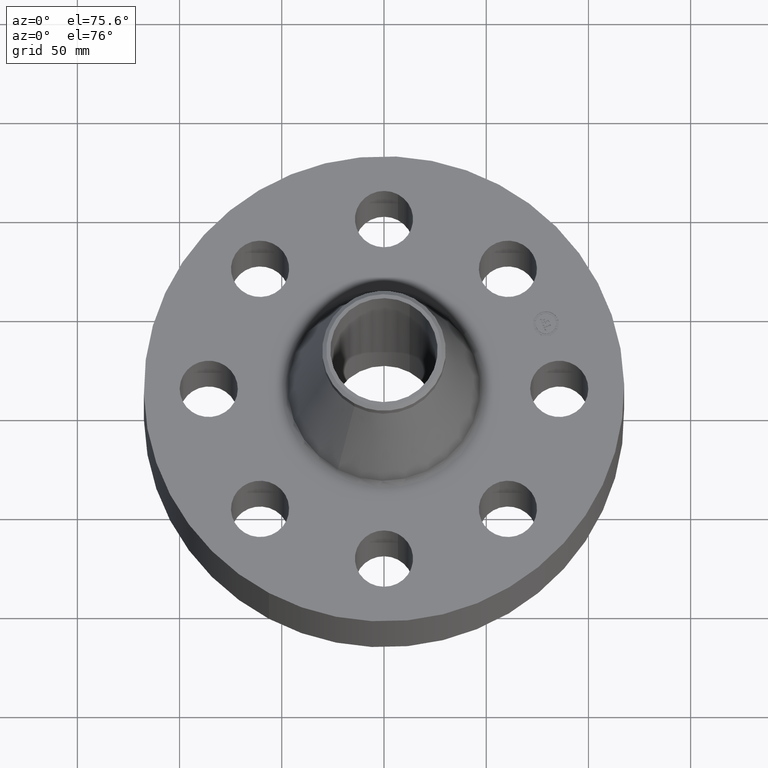
[diagram: clean part render]
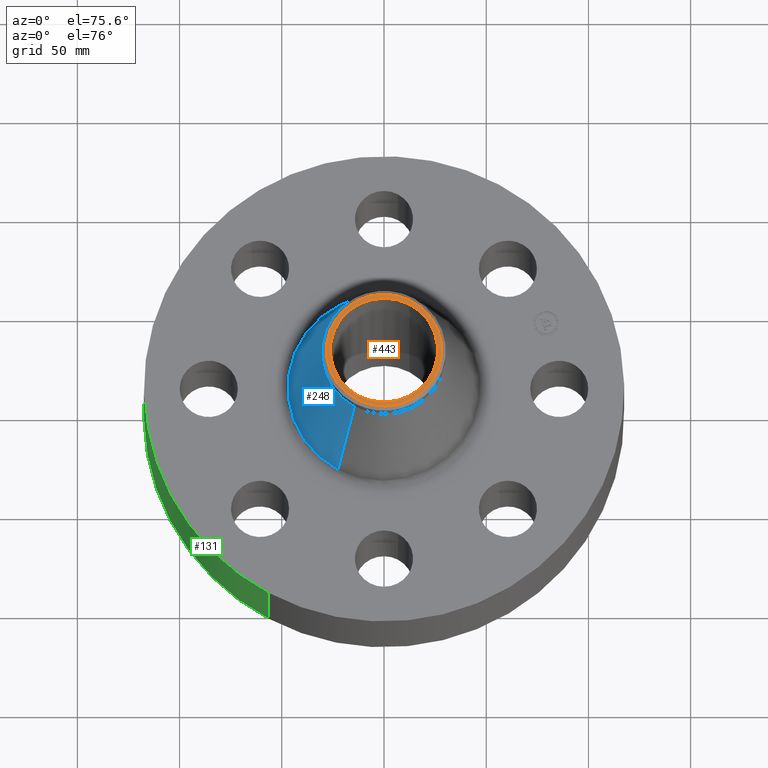
[diagram: same view with three faces highlighted in distinct colors, each labeled with its STEP entity id]
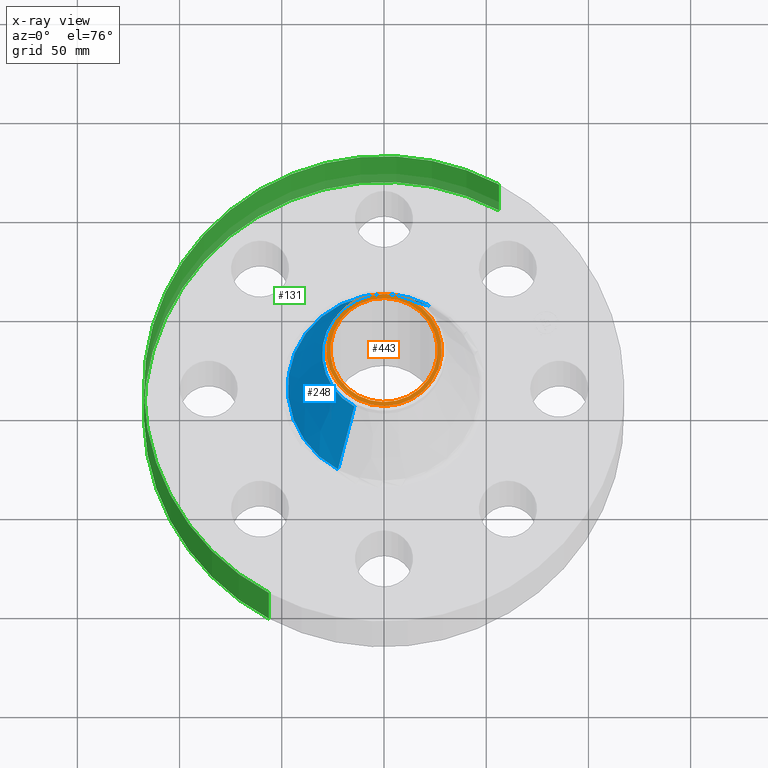
[diagram: x-ray of the same camera — body ghosted, the three highlighted faces saturated]
A machine part, auxiliary view with three faces highlighted in distinct colors.
The next image is the same camera in x-ray (body ghosted, the three faces saturated) — at least one of them is partly hidden behind the body in this view.
Their STEP definitions:

[orange] entity #443 — the highlighted planar face has unit normal (0, 0, -1).
#322=AXIS2_PLACEMENT_3D('Circle Axis2P3D',#320,#321,$) ;
#347=AXIS2_PLACEMENT_3D('Circle Axis2P3D',#345,#346,$) ;
#382=AXIS2_PLACEMENT_3D('Circle Axis2P3D',#380,#381,$) ;
#428=AXIS2_PLACEMENT_3D('Plane Axis2P3D',#425,#426,#427) ;
#432=AXIS2_PLACEMENT_3D('Circle Axis2P3D',#430,#431,$) ;
#317=CARTESIAN_POINT('Vertex',(0.533236336559,-0.976082566843,5.00000000002)) ;
#320=CARTESIAN_POINT('Axis2P3D Location',(0.,0.,5.00000000002)) ;
#324=CARTESIAN_POINT('Vertex',(-0.533236336559,0.976082566843,5.00000000002)) ;
#345=CARTESIAN_POINT('Axis2P3D Location',(0.,0.,5.00000000002)) ;
#349=CARTESIAN_POINT('Vertex',(0.495486294149,0.906981577717,5.00000000002)) ;
#351=CARTESIAN_POINT('Vertex',(-0.495486294149,-0.906981577717,5.00000000002)) ;
#380=CARTESIAN_POINT('Axis2P3D Location',(0.,0.,5.00000000002)) ;
#425=CARTESIAN_POINT('Axis2P3D Location',(0.,1.19,5.00000000002)) ;
#430=CARTESIAN_POINT('Axis2P3D Location',(0.,0.,5.00000000002)) ;
#321=DIRECTION('Axis2P3D Direction',(0.,0.,-0.0393700787402)) ;
#346=DIRECTION('Axis2P3D Direction',(0.,0.,-0.0393700787402)) ;
#381=DIRECTION('Axis2P3D Direction',(0.,0.,-0.0393700787402)) ;
#426=DIRECTION('Axis2P3D Direction',(0.,0.,-0.0393700787402)) ;
#427=DIRECTION('Axis2P3D XDirection',(0.0393700787402,0.,0.)) ;
#431=DIRECTION('Axis2P3D Direction',(0.,0.,-0.0393700787402)) ;
#436=ORIENTED_EDGE('',*,*,#434,.T.) ;
#437=ORIENTED_EDGE('',*,*,#326,.T.) ;
#440=ORIENTED_EDGE('',*,*,#384,.T.) ;
#441=ORIENTED_EDGE('',*,*,#353,.T.) ;
#442=FACE_BOUND('',#439,.T.) ;
#443=ADVANCED_FACE('PartBody',(#438,#442),#429,.F.) ;
#323=CIRCLE('generated circle',#322,1.11224015748) ;
#348=CIRCLE('generated circle',#347,1.0335) ;
#383=CIRCLE('generated circle',#382,1.0335) ;
#433=CIRCLE('generated circle',#432,1.11224015748) ;
#326=EDGE_CURVE('',#325,#318,#323,.F.) ;
#353=EDGE_CURVE('',#350,#352,#348,.T.) ;
#384=EDGE_CURVE('',#352,#350,#383,.T.) ;
#434=EDGE_CURVE('',#318,#325,#433,.F.) ;
#435=EDGE_LOOP('',(#436,#437)) ;
#439=EDGE_LOOP('',(#440,#441)) ;
#438=FACE_OUTER_BOUND('',#435,.T.) ;
#429=PLANE('',#428) ;
#318=VERTEX_POINT('',#317) ;
#325=VERTEX_POINT('',#324) ;
#350=VERTEX_POINT('',#349) ;
#352=VERTEX_POINT('',#351) ;

[blue] entity #248 — the highlighted conical surface has half-angle 14.215 deg.
#196=AXIS2_PLACEMENT_3D('Circle Axis2P3D',#194,#195,$) ;
#209=AXIS2_PLACEMENT_3D('Cone Axis2P3D',#206,#207,#208) ;
#239=AXIS2_PLACEMENT_3D('Circle Axis2P3D',#237,#238,$) ;
#167=CARTESIAN_POINT('Vertex',(0.887927964801,1.62534123733,2.09053261495)) ;
#174=CARTESIAN_POINT('Vertex',(-0.887927964801,-1.62534123733,2.09053261495)) ;
#194=CARTESIAN_POINT('Axis2P3D Location',(0.,0.,2.09053261495)) ;
#206=CARTESIAN_POINT('Axis2P3D Location',(0.,0.,4.70411230183)) ;
#211=CARTESIAN_POINT('Line Origine',(0.729222177871,1.33483224299,3.39732245839)) ;
#215=CARTESIAN_POINT('Vertex',(0.570516390941,1.04432324865,4.70411230183)) ;
#222=CARTESIAN_POINT('Vertex',(-0.570516390941,-1.04432324865,4.70411230183)) ;
#225=CARTESIAN_POINT('Line Origine',(-0.729222177871,-1.33483224299,3.39732245839)) ;
#237=CARTESIAN_POINT('Axis2P3D Location',(0.,0.,4.70411230183)) ;
#195=DIRECTION('Axis2P3D Direction',(0.,0.,-0.0393700787402)) ;
#207=DIRECTION('Axis2P3D Direction',(0.,0.,-0.0393700787402)) ;
#208=DIRECTION('Axis2P3D XDirection',(-0.0188750212049,-0.0345504945626,0.)) ;
#212=DIRECTION('Vector Direction',(0.00463497931577,0.00848427272791,-0.0381646064178)) ;
#226=DIRECTION('Vector Direction',(-0.00463497931577,-0.00848427272791,-0.0381646064178)) ;
#238=DIRECTION('Axis2P3D Direction',(0.,0.,-0.0393700787402)) ;
#213=VECTOR('Line Direction',#212,0.0393700787402) ;
#227=VECTOR('Line Direction',#226,0.0393700787402) ;
#243=ORIENTED_EDGE('',*,*,#198,.F.) ;
#244=ORIENTED_EDGE('',*,*,#229,.T.) ;
#245=ORIENTED_EDGE('',*,*,#241,.T.) ;
#246=ORIENTED_EDGE('',*,*,#217,.F.) ;
#248=ADVANCED_FACE('PartBody',(#247),#210,.T.) ;
#197=CIRCLE('generated circle',#196,1.85206646977) ;
#240=CIRCLE('generated circle',#239,1.19) ;
#210=CONICAL_SURFACE('Cone',#209,1.19,0.248098929197) ;
#198=EDGE_CURVE('',#175,#168,#197,.T.) ;
#217=EDGE_CURVE('',#168,#216,#214,.F.) ;
#229=EDGE_CURVE('',#175,#223,#228,.F.) ;
#241=EDGE_CURVE('',#223,#216,#240,.T.) ;
#242=EDGE_LOOP('',(#243,#244,#245,#246)) ;
#247=FACE_OUTER_BOUND('',#242,.T.) ;
#214=LINE('Line',#211,#213) ;
#228=LINE('Line',#225,#227) ;
#168=VERTEX_POINT('',#167) ;
#175=VERTEX_POINT('',#174) ;
#216=VERTEX_POINT('',#215) ;
#223=VERTEX_POINT('',#222) ;

[green] entity #131 — the highlighted cylindrical surface (partial cylindrical patch) has radius 117.475 mm, axis along (0, 0, -1).
#95=AXIS2_PLACEMENT_3D('Cylinder Axis2P3D',#92,#93,#94) ;
#99=AXIS2_PLACEMENT_3D('Circle Axis2P3D',#97,#98,$) ;
#115=AXIS2_PLACEMENT_3D('Circle Axis2P3D',#113,#114,$) ;
#92=CARTESIAN_POINT('Axis2P3D Location',(0.,0.,2.37500000001)) ;
#97=CARTESIAN_POINT('Axis2P3D Location',(0.,0.,2.79741234551E-016)) ;
#101=CARTESIAN_POINT('Vertex',(-2.21734311605,-4.05881934876,2.79741234551E-016)) ;
#103=CARTESIAN_POINT('Vertex',(2.21734311605,4.05881934876,2.79741234551E-016)) ;
#106=CARTESIAN_POINT('Line Origine',(-2.21734311605,-4.05881934876,1.)) ;
#110=CARTESIAN_POINT('Vertex',(-2.21734311605,-4.05881934876,2.00000000001)) ;
#113=CARTESIAN_POINT('Axis2P3D Location',(0.,0.,2.00000000001)) ;
#117=CARTESIAN_POINT('Vertex',(2.21734311605,4.05881934876,2.00000000001)) ;
#120=CARTESIAN_POINT('Line Origine',(2.21734311605,4.05881934876,1.)) ;
#93=DIRECTION('Axis2P3D Direction',(0.,0.,-0.0393700787402)) ;
#94=DIRECTION('Axis2P3D XDirection',(0.0188750212049,0.0345504945626,0.)) ;
#98=DIRECTION('Axis2P3D Direction',(0.,0.,-0.0393700787402)) ;
#107=DIRECTION('Vector Direction',(0.,0.,-0.0393700787402)) ;
#114=DIRECTION('Axis2P3D Direction',(0.,0.,-0.0393700787402)) ;
#121=DIRECTION('Vector Direction',(0.,0.,-0.0393700787402)) ;
#108=VECTOR('Line Direction',#107,0.0393700787402) ;
#122=VECTOR('Line Direction',#121,0.0393700787402) ;
#126=ORIENTED_EDGE('',*,*,#105,.F.) ;
#127=ORIENTED_EDGE('',*,*,#112,.T.) ;
#128=ORIENTED_EDGE('',*,*,#119,.T.) ;
#129=ORIENTED_EDGE('',*,*,#124,.F.) ;
#131=ADVANCED_FACE('PartBody',(#130),#96,.T.) ;
#100=CIRCLE('generated circle',#99,4.62500000002) ;
#116=CIRCLE('generated circle',#115,4.62500000002) ;
#96=CYLINDRICAL_SURFACE('generated cylinder',#95,4.62500000002) ;
#105=EDGE_CURVE('',#102,#104,#100,.T.) ;
#112=EDGE_CURVE('',#102,#111,#109,.F.) ;
#119=EDGE_CURVE('',#111,#118,#116,.T.) ;
#124=EDGE_CURVE('',#104,#118,#123,.F.) ;
#125=EDGE_LOOP('',(#126,#127,#128,#129)) ;
#130=FACE_OUTER_BOUND('',#125,.T.) ;
#109=LINE('Line',#106,#108) ;
#123=LINE('Line',#120,#122) ;
#102=VERTEX_POINT('',#101) ;
#104=VERTEX_POINT('',#103) ;
#111=VERTEX_POINT('',#110) ;
#118=VERTEX_POINT('',#117) ;